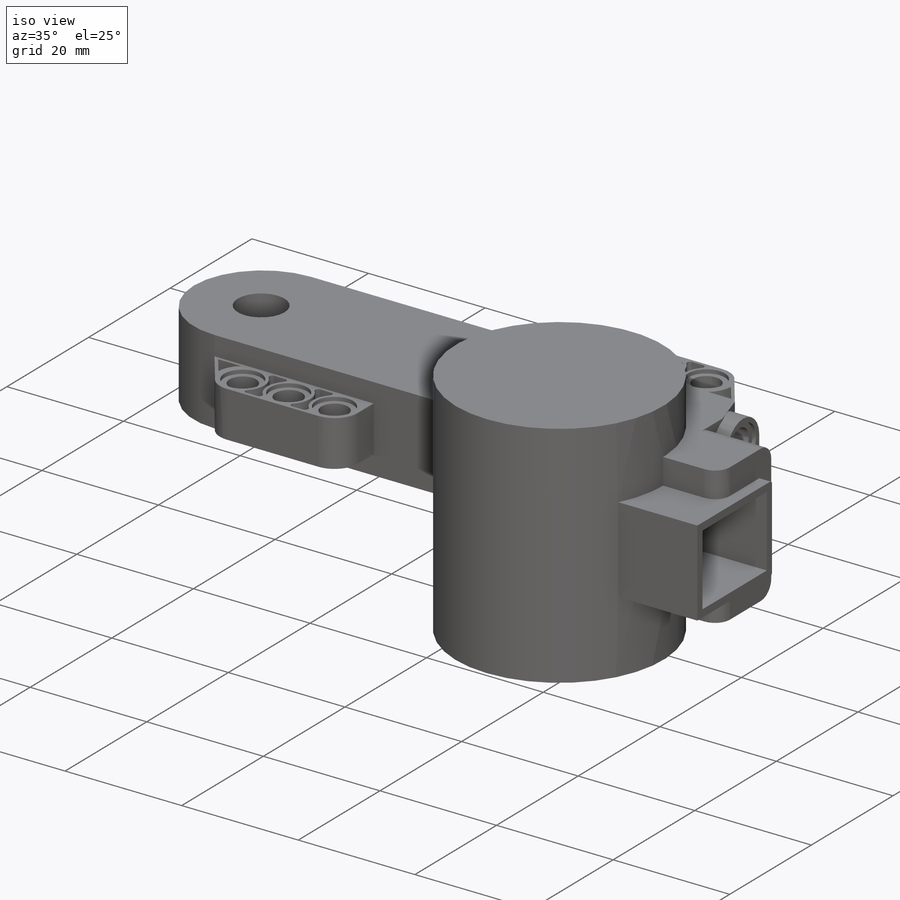
[diagram: iso view]
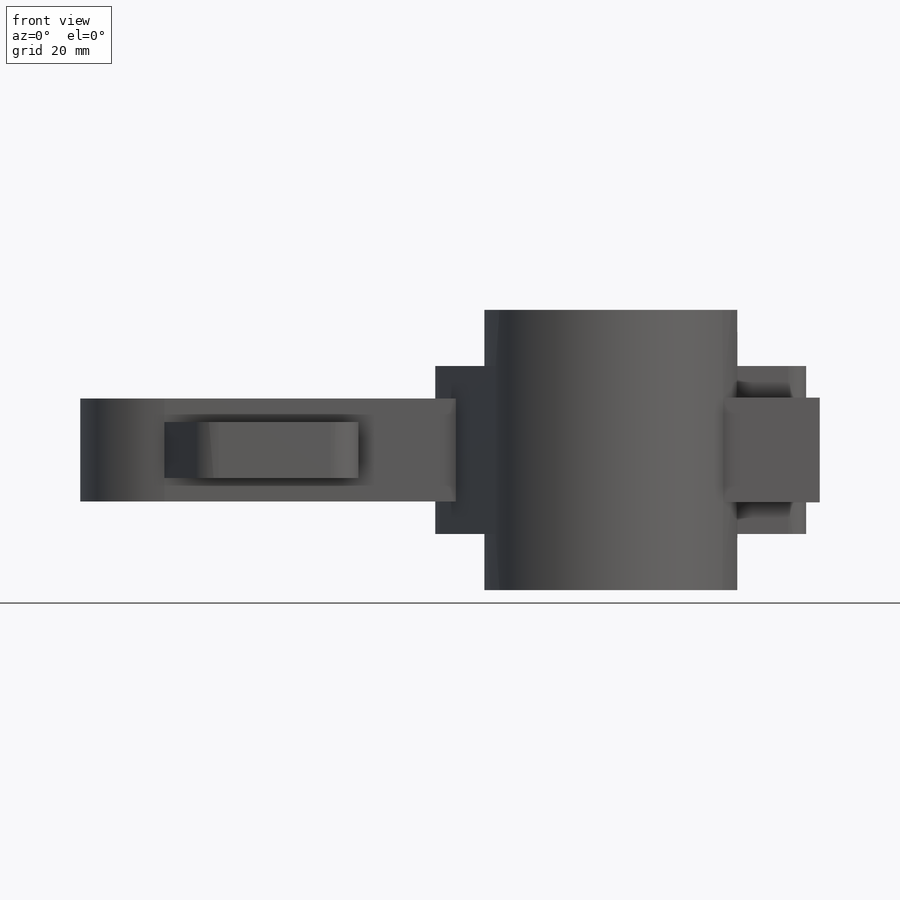
[diagram: front view]
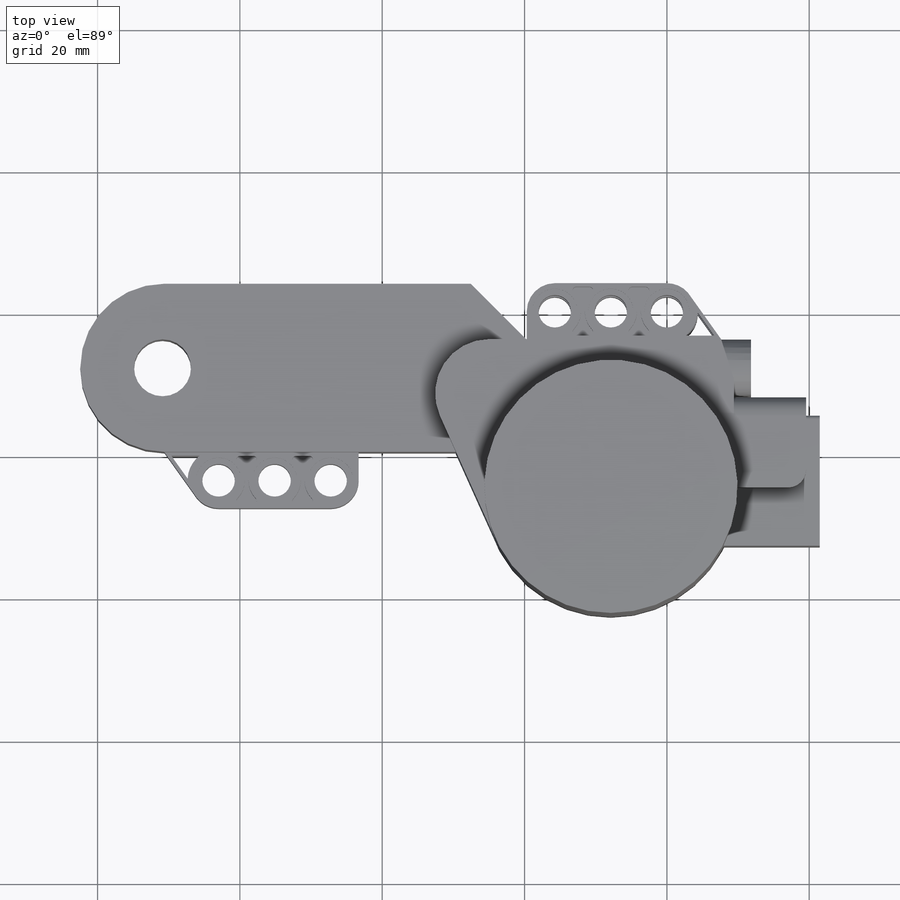
[diagram: top view]
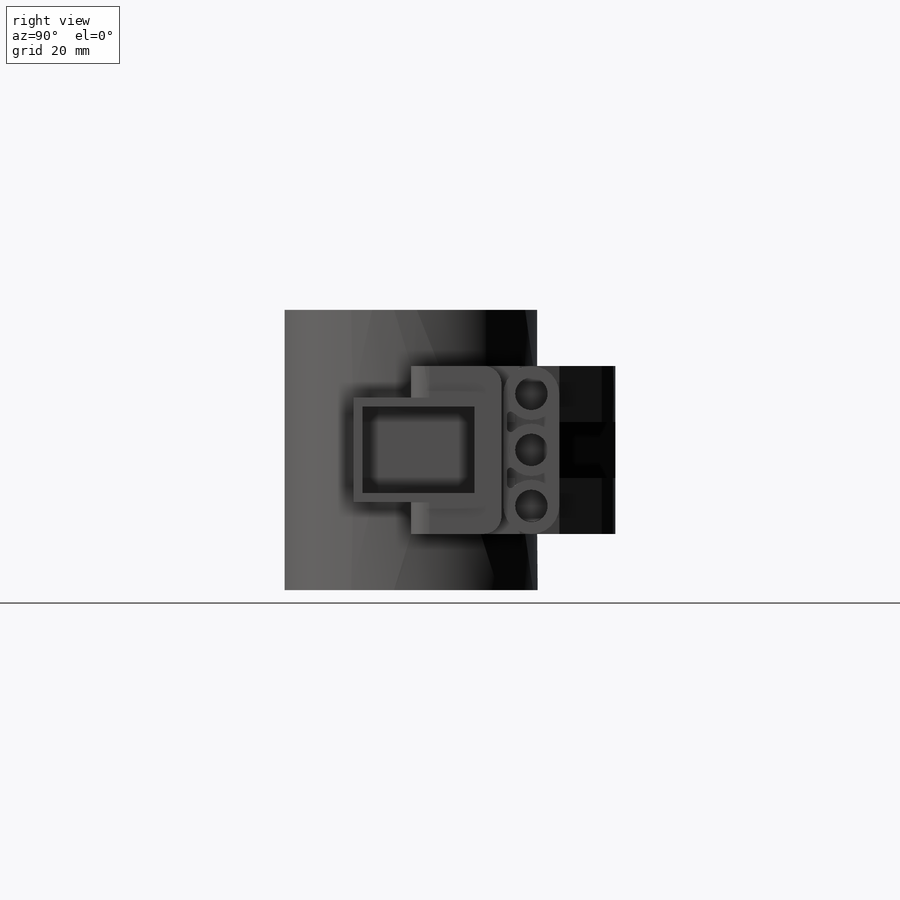
[diagram: right view]
SOLIDWORKS PART (.sldprt)
format: sldprt  version: not decoded by parser v0  size: 1,354,752 bytes
history: native  units: mm
features: sketch x22, extrude x10, cut_extrude x10, move_body x5, boolean_combine x3, plane x3, pattern_linear x2, mirror x2, fillet x2, material x1 (+11 scaffold rows collapsed; 5 parser-record rows omitted)
feature tree (76):
  scaffold x11  (default folders/planes/origin — collapsed)
  material  "PVC Rigid"
  sketch  "Sketch1"  dims[c1.D1=~12.743444mm c1.D8=0.508mm c2.D1=72.39mm c2.D2=39.37mm c2.D3=7.874mm c2.D4=6.985mm c2.D5=20.32mm c2.D6=~14.205489mm c3.D6=135.0deg c3.D1=22.86mm c3.D2=22.86mm c4.D1=15.748mm c4.D2=~15.761834mm c5.D1=15.748mm c5.D7=6.985mm]
  extrude  "Extrude1"  Depth=3.937mm
  sketch  "Sketch2"  dims[c1.D1=6.35mm c1.D2=8.255mm c1.D3=8.255mm c2.D2=8.255mm]
  cut_extrude  "Cut-Extrude1"  Depth=0.635mm
  sketch  "Sketch3"  dims[D1=4.572mm]
  cut_extrude  "Cut-Extrude2"  [1 undecoded]
  pattern_linear  "LPattern12"  Count1=3 Count2=1 Spacing1=7.874mm Spacing2=31.115mm
  sketch  "Sketch5"  dims[c1.D1=6.35mm c1.D2=~4.174562mm c1.D5=0.508mm c2.D1=~3.756255mm c2.D4=6.35mm c2.D3=3.683mm c3.D4=0.508mm c3.D1=0.508mm c3.D2=0.508mm c3.D3=0.508mm c4.D4=0.508mm c4.D1=0.508mm c4.D2=0.508mm c4.D3=0.508mm c5.D4=~0.032871mm c5.D3=0.508mm c5.D1=0.508mm]
  cut_extrude  "Cut-Extrude4"  Depth=3.175mm
  pattern_linear  "LPattern13"  Count1=2 Count2=1 Spacing1=7.874mm Spacing2=31.115mm
  mirror  "Mirror1"
  move_body  "Body-Move/Copy7"
  sketch  "Sketch6"  dims[c1.D2=~23.002237mm c1.D3=~23.002237mm c2.D2=25.4mm c2.D1=0.0mm c2.D3=0.508mm c2.D4=0.508mm]
  extrude  "Extrude2"  Depth=7.874mm
  sketch  "Sketch7"
  extrude  "Extrude3"  Depth=7.874mm
  move_body  "Body-Move/Copy1"
  sketch  "Sketch8"  dims[D1=35.56mm D3=7.62mm D4=19.05mm D5=12.7mm D6=2.54mm D7=10.16mm D2=0.0mm]
  extrude  "Extrude4"  Depth=7.874mm
  sketch  "Sketch26"  dims[D1=7.874mm]
  move_body  "Body-Move/Copy6"
  parser-record x5  (decoder bookkeeping rows leaked as tree rows — omitted from the tree; the rows remain in map.json)
  boolean_combine  "Combine3"
  sketch  "Sketch9"  dims[c1.D2=35.56mm c1.D1=30.48mm c2.D2=34.29mm]
  extrude  "Extrude5"  Depth=9.525mm
  fillet  "Fillet1"  Radius=2.54mm
  sketch  "Sketch10"  dims[D2=3.429mm D3=18.288mm D1=2.54mm]
  cut_extrude  "Cut-Extrude5"  Depth=12.065mm
  fillet  "Fillet2"  Radius=0.508mm
  sketch  "Sketch11"  dims[c1.D1=~2.441812mm c1.D2=2.286mm c2.D1=4.572mm c2.D2=5.08mm c2.D3=5.08mm c3.D2=0.0mm c3.D3=0.254mm c3.D4=~20.619493mm c3.D5=~24.429493mm c3.D6=~24.430813mm c4.D5=~24.429493mm c4.D6=~24.429493mm c5.D5=~24.429493mm c5.D6=~24.429493mm c6.D5=~24.429493mm c6.D6=~24.429493mm c7.D5=~24.429493mm c7.D6=~24.429493mm c8.D5=~24.429493mm c8.D6=~24.429493mm c9.D5=~24.429493mm c9.D4=31.75mm c9.D3=1.905mm c10.D5=~32.452648mm c10.D6=~6.716538mm c10.D4=34.29mm c10.D2=3.937mm]
  cut_extrude  "Cut-Extrude6"  Depth=31.75mm
  move_body  "Body-Move/Copy8"
  boolean_combine  "Combine5"
  plane  "Plane1"  Offset=11.811mm
  sketch  "Sketch12"  dims[c1.D1=22.86mm c1.D2=44.45mm c1.D3=~12.88948mm c2.D3=135.0deg c2.D1=7.62mm c3.D3=24.003mm c3.D4=3.556mm c4.D3=3.556mm c4.D4=12.0015mm c4.D5=4.0005mm c5.D4=3.556mm c5.D5=~8.143149mm c6.D5=135.0deg c6.D6=7.62mm c6.D3=7.62mm c6.D4=3.81mm c6.D2=54.864mm c7.D5=7.747mm c8.D5=135.0deg]
  extrude  "Extrude6"  Depth=3.81mm
  sketch  "Sketch13"  dims[D1=8.001mm D2=55.118mm]
  cut_extrude  "Cut-Extrude7"  [1 undecoded]
  sketch  "Sketch15"  dims[D1=0.0mm]
  extrude  "Extrude7"  Depth=3.937mm
  sketch  "Sketch25"  dims[D1=0.0mm]
  cut_extrude  "Extrude12"  Depth=0.508mm
  mirror  "Mirror2"
  boolean_combine  "Combine1"
  sketch  "Sketch22"  dims[D1=8.001mm D2=0.254mm]
  move_body  "Body-Move/Copy2"
  sketch  "Sketch16"  dims[c1.D3=1.27mm c1.D4=1.27mm c1.D5=1.27mm c1.D6=1.27mm c1.D2=1.27mm c2.D4=1.27mm c2.D5=~12.855251mm c2.D1=0.0mm c2.D2=0.0mm]
  extrude  "Extrude8"  Depth=13.97mm
  sketch  "Sketch23"  dims[D1=0.0mm]
  sketch  "Sketch24"  dims[D1=0.0mm]
  plane  "Plane2"  Offset=3.81mm
  plane  "Plane3"  Offset=11.43mm
  cut_extrude  "Extrude13"  Depth=1.651mm
  cut_extrude  "Extrude14"  Depth=1.651mm
  sketch  "Sketch30"
  extrude  "Boss-Extrude1"  [1 undecoded]
  sketch  "Sketch31"
  extrude  "Boss-Extrude2"  [1 undecoded]
  sketch  "Sketch32"  dims[D1=~2.998303mm]
  cut_extrude  "Cut-Extrude8"  Depth=0.254mm
decode coverage: 39 of 56 modeling features carry decoded parameters
note: ~ marks probable driven/reference dimensions
note: 4 parameter values undecoded
summary: no parameter record found for 4 features
note: suppression state not decoded; provenance and decode notes live in map.json
